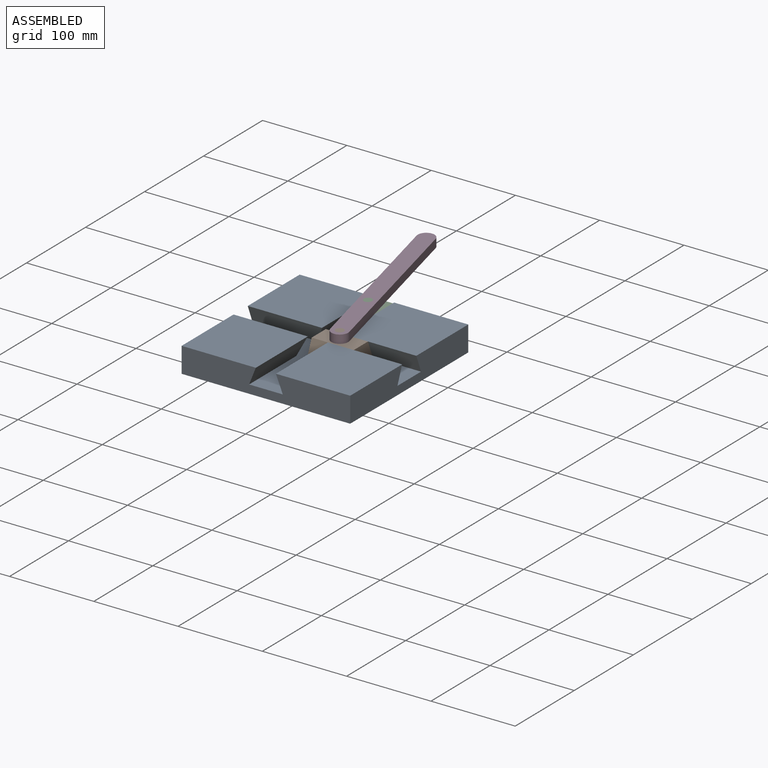
[diagram: assembled view]
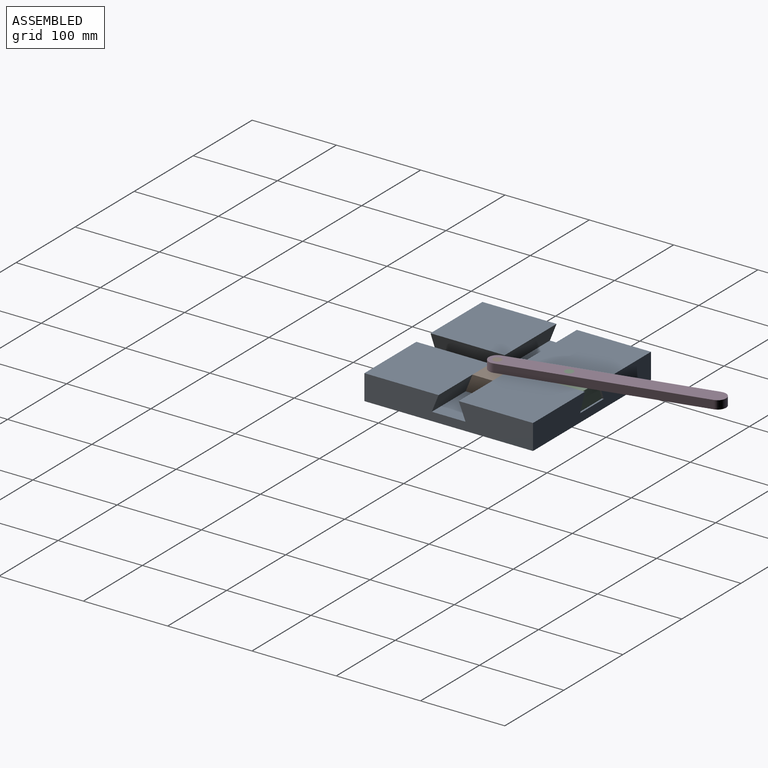
[diagram: assembled view, second angle]
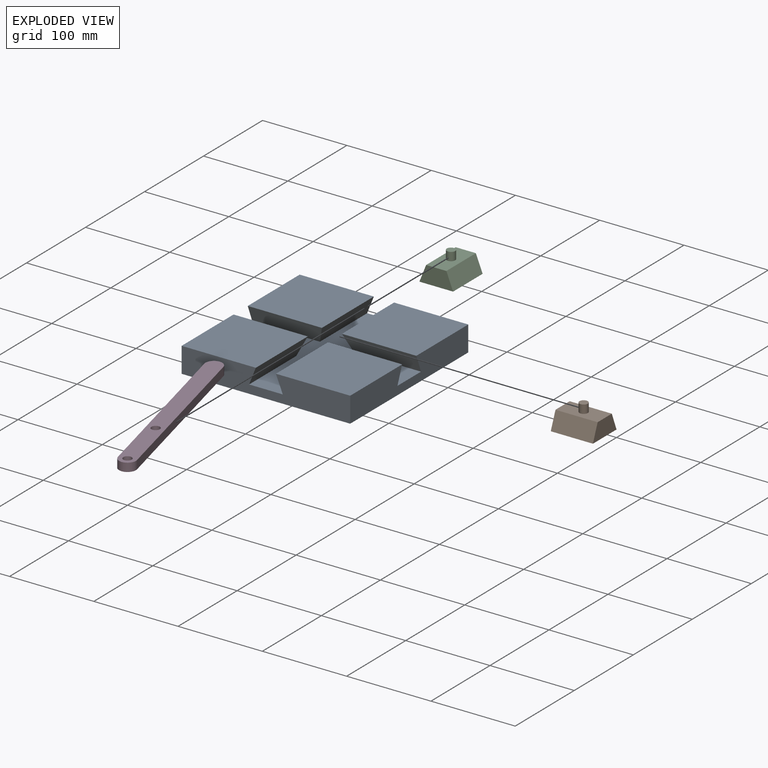
[diagram: exploded view]
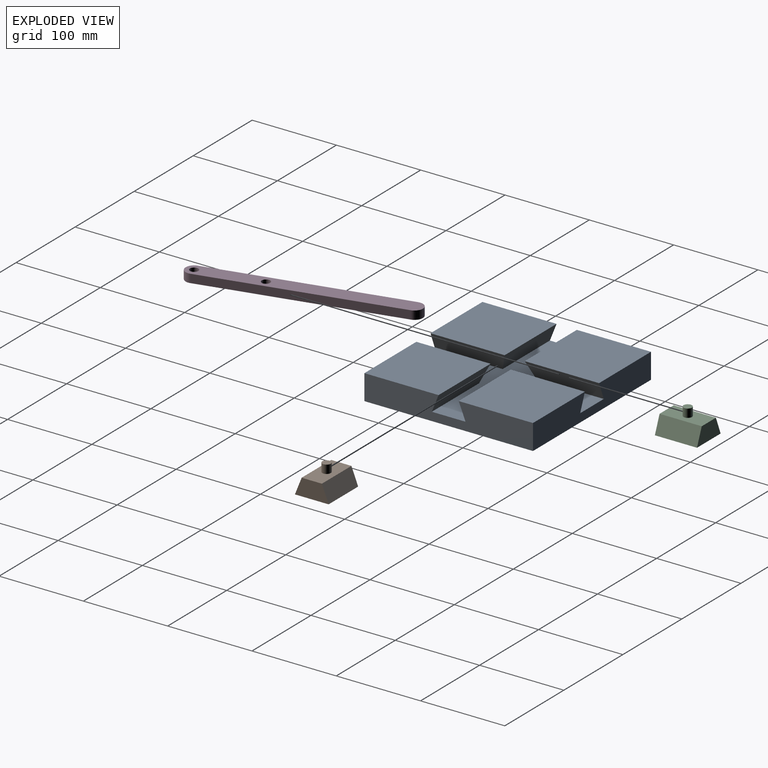
[diagram: exploded view, second angle]
ASSEMBLY  parts=4 mates=4
PART A: 18 faces, bbox 200x200x30 mm
  f0: plane 88x88mm, normal (0,0,1), area 7744mm2, adj f2,f4,f7,f15
  f1: plane 88x88mm, normal (0,0,1), area 7744mm2, adj f3,f7,f8,f17
  f2: plane 200x30mm, normal (1,0,0), area 5360mm2, adj f0,f5,f6,f7,f10,f12,f14,f15
  f3: plane 88x20mm, normal (0.93,0,-0.37), area 1809.4mm2, adj f1,f7,f12,f17
  f4: plane 88x20mm, normal (-0.93,0,-0.37), area 1809.4mm2, adj f0,f7,f12,f15
  f5: plane 88x88mm, normal (0,0,1), area 7744mm2, adj f2,f6,f13,f14
  f6: plane 200x30mm, normal (0,-1,0), area 5360mm2, adj f2,f5,f8,f9,f10,f11,f12,f13
  f7: plane 200x30mm, normal (0,1,0), area 5360mm2, adj f0,f1,f2,f3,f4,f8,f10,f12
  f8: plane 200x30mm, normal (-1,0,0), area 5360mm2, adj f1,f6,f7,f9,f10,f12,f16,f17
  f9: plane 88x88mm, normal (0,0,1), area 7744mm2, adj f6,f8,f11,f16
  f10: plane 200x200mm, normal (0,0,-1), area 40000mm2, adj f2,f6,f7,f8
  f11: plane 88x20mm, normal (0.93,0,-0.37), area 1809.4mm2, adj f6,f9,f12,f16
  f12: plane 200x200mm, normal (0,0,1), area 14400mm2, adj f2,f3,f4,f6,f7,f8,f11,f13
  f13: plane 88x20mm, normal (-0.93,0,-0.37), area 1809.4mm2, adj f5,f6,f12,f14
  f14: plane 88x20mm, normal (0,0.93,-0.37), area 1809.4mm2, adj f2,f5,f12,f13
  f15: plane 88x20mm, normal (0,-0.93,-0.37), area 1809.4mm2, adj f0,f2,f4,f12
  f16: plane 88x20mm, normal (0,0.93,-0.37), area 1809.4mm2, adj f8,f9,f11,f12
  f17: plane 88x20mm, normal (0,-0.93,-0.37), area 1809.4mm2, adj f1,f3,f8,f12
PART B: 8 faces, bbox 40x50x30 mm
  f0: plane 50x24mm, normal (0,0,1), area 1121.5mm2, adj f1,f3,f4,f5,f6
  f1: plane 50x20mm, normal (-0.93,0,0.37), area 1077mm2, adj f0,f2,f4,f5
  f2: plane 50x40mm, normal (0,0,-1), area 2000mm2, adj f1,f3,f4,f5
  f3: plane 50x20mm, normal (0.93,0,0.37), area 1077mm2, adj f0,f2,f4,f5
  f4: plane 40x20mm, normal (0,1,0), area 640mm2, adj f0,f1,f2,f3
  f5: plane 40x20mm, normal (0,-1,0), area 640mm2, adj f0,f1,f2,f3
  f6: cylinder r=5mm len=10mm, axis (0,0,-1), area 314.2mm2, adj f0,f7
  f7: plane 10x10mm, normal (0,0,1), area 78.5mm2, adj f6
PART C: same geometry as B
PART D: 8 faces, bbox 250x20x10 mm
  f0: plane 230x10mm, normal (0,-1,0), area 2300mm2, adj f4,f5,f6,f7
  f1: plane 230x10mm, normal (0,1,0), area 2300mm2, adj f4,f5,f6,f7
  f2: cylinder r=5mm len=10mm, axis (0,0,-1), area 314.2mm2, adj f4,f5
  f3: cylinder r=5mm len=10mm, axis (0,0,-1), area 314.2mm2, adj f4,f5
  f4: plane 250x20mm, normal (0,0,1), area 4757.1mm2, adj f0,f1,f2,f3,f6,f7
  f5: plane 250x20mm, normal (0,0,-1), area 4757.1mm2, adj f0,f1,f2,f3,f6,f7
  f6: cylinder r=10mm len=20mm, axis (0,0,-1), area 314.2mm2, adj f0,f1,f4,f5
  f7: cylinder r=10mm len=20mm, axis (0,0,-1), area 314.2mm2, adj f0,f1,f4,f5
PLACE A t=(-22.94,-32.74,42.44)mm fixed
PLACE B rot(axis=(0,0,1),90deg) t=(-80.31,-32.74,42.44)mm
PLACE C t=(-22.94,115.16,42.44)mm
PLACE D rot(axis=(0,0,1),103.6deg) t=(-180.51,43.2,72.44)mm
MATE slider A.f8 <-> B.f4  axis (-1,0,0) through (-122.94,-32.74,52.44)mm
MATE revolute C.f6 <-> D.f3  axis (0,0,1) through (-22.94,40.16,82.44)mm
MATE slider C.f5 <-> A.f6  axis (0,-1,0) through (-22.94,15.16,52.44)mm
MATE revolute D.f2 <-> B.f6  axis (0,0,1) through (-5.31,-32.74,82.44)mm
